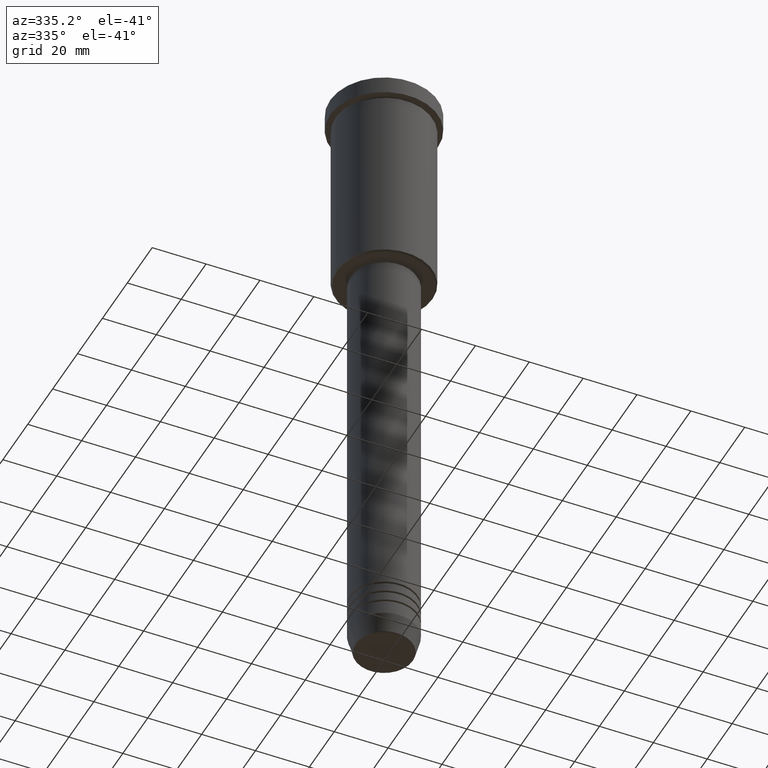
[diagram: clean part render]
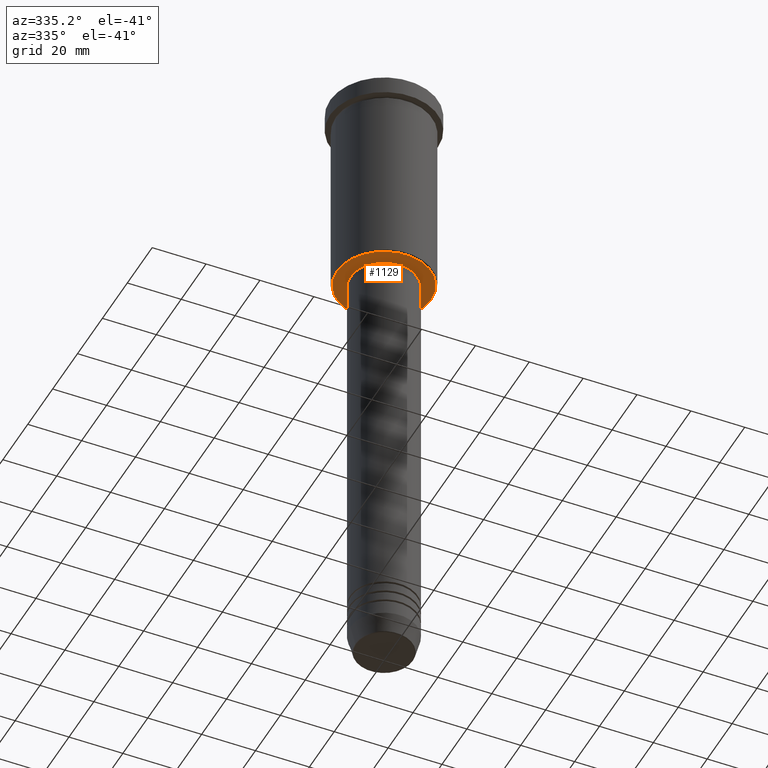
[diagram: same view with one face highlighted and labeled with its STEP entity id]
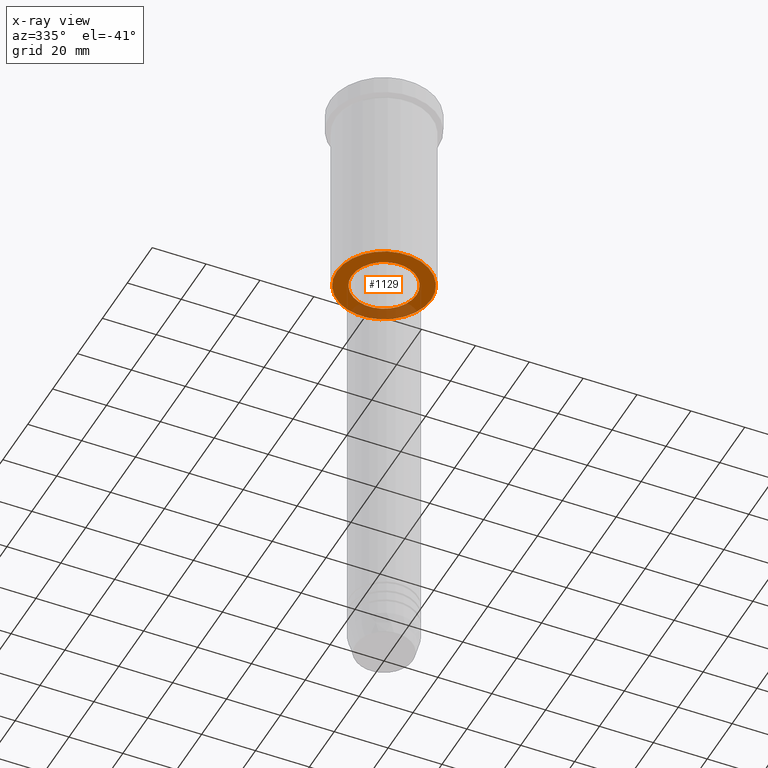
[diagram: x-ray of the same camera — body ghosted, the highlighted face saturated]
A machine part, auxiliary view. The second image highlights one B-rep face of the part: STEP entity #1129.
The next image is the same camera in x-ray: the body ghosted, the highlighted face saturated — about 23% of this face is hidden behind the body in this view.
In plain terms, the highlighted planar face has unit normal (0, 0, -1).
Its self-contained STEP definition (entity closure, byte-faithful):
#11 = DIRECTION ( 'NONE',  ( 0.000000000000000000, 0.000000000000000000, -1.000000000000000000 ) ) ;
#25 = DIRECTION ( 'NONE',  ( -1.000000000000000000, 0.000000000000000000, 0.000000000000000000 ) ) ;
#29 = CIRCLE ( 'NONE', #446, 17.49999999999998934 ) ;
#34 = CARTESIAN_POINT ( 'NONE',  ( 0.000000000000000000, 18.00000000000000000, -75.99999999999998579 ) ) ;
#71 = CIRCLE ( 'NONE', #173, 12.00000000000000000 ) ;
#98 = CARTESIAN_POINT ( 'NONE',  ( -12.00000000000000000, 1.469576158976823947E-15, -75.99999999999998579 ) ) ;
#166 = ORIENTED_EDGE ( 'NONE', *, *, #338, .T. ) ;
#173 = AXIS2_PLACEMENT_3D ( 'NONE', #1122, #592, #544 ) ;
#182 = DIRECTION ( 'NONE',  ( -0.000000000000000000, -0.000000000000000000, 1.000000000000000000 ) ) ;
#187 = DIRECTION ( 'NONE',  ( -1.000000000000000000, 0.000000000000000000, 0.000000000000000000 ) ) ;
#208 = FACE_BOUND ( 'NONE', #816, .T. ) ;
#224 = ORIENTED_EDGE ( 'NONE', *, *, #1050, .T. ) ;
#262 = CARTESIAN_POINT ( 'NONE',  ( 0.000000000000000000, 0.000000000000000000, -75.99999999999998579 ) ) ;
#273 = AXIS2_PLACEMENT_3D ( 'NONE', #999, #11, #187 ) ;
#274 = VERTEX_POINT ( 'NONE', #982 ) ;
#329 = CIRCLE ( 'NONE', #273, 17.49999999999998934 ) ;
#338 = EDGE_CURVE ( 'NONE', #685, #274, #29, .T. ) ;
#360 = VERTEX_POINT ( 'NONE', #98 ) ;
#437 = DIRECTION ( 'NONE',  ( -1.000000000000000000, 0.000000000000000000, -0.000000000000000000 ) ) ;
#446 = AXIS2_PLACEMENT_3D ( 'NONE', #262, #648, #25 ) ;
#478 = CARTESIAN_POINT ( 'NONE',  ( 0.000000000000000000, 0.000000000000000000, -75.99999999999998579 ) ) ;
#500 = PLANE ( 'NONE',  #587 ) ;
#544 = DIRECTION ( 'NONE',  ( 1.000000000000000000, 0.000000000000000000, 0.000000000000000000 ) ) ;
#550 = DIRECTION ( 'NONE',  ( 1.000000000000000000, 0.000000000000000000, 0.000000000000000000 ) ) ;
#563 = CIRCLE ( 'NONE', #996, 12.00000000000000000 ) ;
#587 = AXIS2_PLACEMENT_3D ( 'NONE', #34, #891, #437 ) ;
#592 = DIRECTION ( 'NONE',  ( -0.000000000000000000, -0.000000000000000000, 1.000000000000000000 ) ) ;
#648 = DIRECTION ( 'NONE',  ( 0.000000000000000000, 0.000000000000000000, -1.000000000000000000 ) ) ;
#681 = FACE_OUTER_BOUND ( 'NONE', #897, .T. ) ;
#685 = VERTEX_POINT ( 'NONE', #864 ) ;
#725 = CARTESIAN_POINT ( 'NONE',  ( 12.00000000000000000, 0.000000000000000000, -75.99999999999998579 ) ) ;
#756 = ORIENTED_EDGE ( 'NONE', *, *, #962, .T. ) ;
#773 = ORIENTED_EDGE ( 'NONE', *, *, #1059, .T. ) ;
#816 = EDGE_LOOP ( 'NONE', ( #773, #756 ) ) ;
#864 = CARTESIAN_POINT ( 'NONE',  ( -17.49999999999998934, 2.173748068486550852E-15, -75.99999999999998579 ) ) ;
#891 = DIRECTION ( 'NONE',  ( 0.000000000000000000, 0.000000000000000000, -1.000000000000000000 ) ) ;
#897 = EDGE_LOOP ( 'NONE', ( #224, #166 ) ) ;
#942 = VERTEX_POINT ( 'NONE', #725 ) ;
#962 = EDGE_CURVE ( 'NONE', #360, #942, #71, .T. ) ;
#982 = CARTESIAN_POINT ( 'NONE',  ( 17.49999999999998934, 0.000000000000000000, -75.99999999999998579 ) ) ;
#996 = AXIS2_PLACEMENT_3D ( 'NONE', #478, #182, #550 ) ;
#999 = CARTESIAN_POINT ( 'NONE',  ( 0.000000000000000000, 0.000000000000000000, -75.99999999999998579 ) ) ;
#1050 = EDGE_CURVE ( 'NONE', #274, #685, #329, .T. ) ;
#1059 = EDGE_CURVE ( 'NONE', #942, #360, #563, .T. ) ;
#1122 = CARTESIAN_POINT ( 'NONE',  ( 0.000000000000000000, 0.000000000000000000, -75.99999999999998579 ) ) ;
#1129 = ADVANCED_FACE ( 'NONE', ( #681, #208 ), #500, .T. ) ;